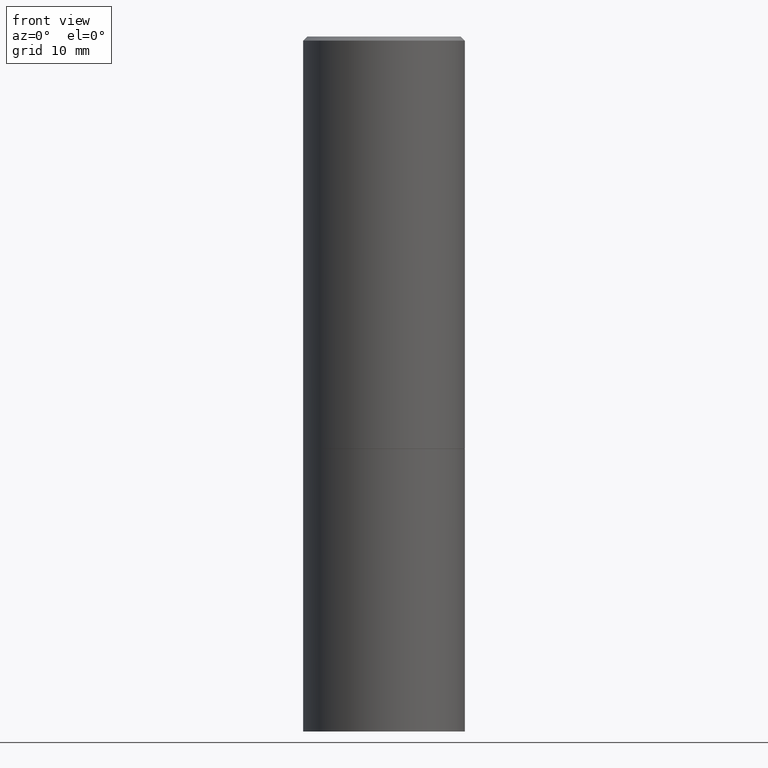
[diagram: clean part render]
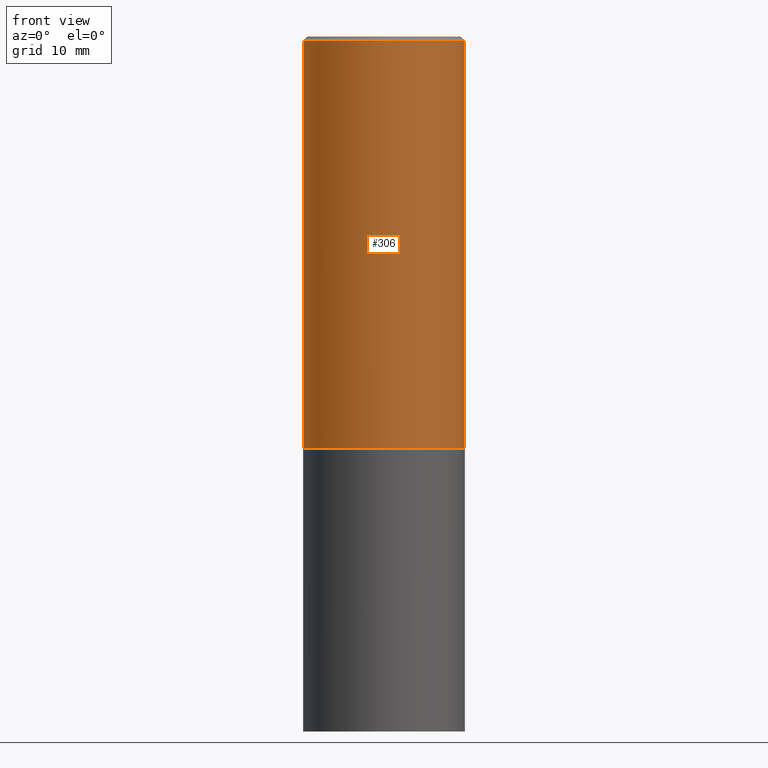
[diagram: same view with one face highlighted and labeled with its STEP entity id]
A machine part, front view. The second image highlights one B-rep face of the part: STEP entity #306.
In plain terms, the highlighted cylindrical surface (partial cylindrical patch) has radius 10 mm, axis along (-0, 0, 1).
Its self-contained STEP definition (entity closure, byte-faithful):
#17 = DIRECTION ( 'NONE',  ( 1.000000000000000000, -6.982962677686266711E-15, 4.876176775795935793E-29 ) ) ;
#23 = EDGE_CURVE ( 'NONE', #138, #92, #357, .T. ) ;
#38 = EDGE_CURVE ( 'NONE', #198, #252, #231, .T. ) ;
#53 = DIRECTION ( 'NONE',  ( -2.445468806185136877E-29, 3.491481338843145188E-15, 1.000000000000000000 ) ) ;
#54 = CARTESIAN_POINT ( 'NONE',  ( -0.3937000000000001609, -7.408604380961272890E-16, -2.006800000000000139 ) ) ;
#58 = ORIENTED_EDGE ( 'NONE', *, *, #121, .T. ) ;
#65 = CARTESIAN_POINT ( 'NONE',  ( 4.907566800252332603E-29, -7.006704750790425192E-15, -2.006800000000000139 ) ) ;
#68 = DIRECTION ( 'NONE',  ( -2.445468806185136597E-29, 3.491481338843145583E-15, 1.000000000000000000 ) ) ;
#80 = CARTESIAN_POINT ( 'NONE',  ( 0.3936999999999998279, -2.770807688499514156E-15, -0.02000000000000009062 ) ) ;
#92 = VERTEX_POINT ( 'NONE', #80 ) ;
#97 = AXIS2_PLACEMENT_3D ( 'NONE', #98, #288, #17 ) ;
#98 = CARTESIAN_POINT ( 'NONE',  ( 0.000000000000000000, 0.000000000000000000, 0.000000000000000000 ) ) ;
#112 = CARTESIAN_POINT ( 'NONE',  ( 4.890937612370295054E-31, -6.982962677686322424E-17, -0.02000000000000009062 ) ) ;
#121 = EDGE_CURVE ( 'NONE', #252, #92, #330, .T. ) ;
#122 = CARTESIAN_POINT ( 'NONE',  ( 0.3936999999999999389, -2.749192406205082822E-15, 1.919750796630859611E-29 ) ) ;
#130 = ORIENTED_EDGE ( 'NONE', *, *, #38, .T. ) ;
#133 = AXIS2_PLACEMENT_3D ( 'NONE', #112, #68, #167 ) ;
#138 = VERTEX_POINT ( 'NONE', #358 ) ;
#139 = EDGE_LOOP ( 'NONE', ( #163, #130, #58, #309 ) ) ;
#158 = CARTESIAN_POINT ( 'NONE',  ( 0.3937000000000001054, -9.755897156995509197E-15, -2.006800000000000139 ) ) ;
#163 = ORIENTED_EDGE ( 'NONE', *, *, #207, .F. ) ;
#167 = DIRECTION ( 'NONE',  ( 1.000000000000000000, -6.982962677686266711E-15, 0.000000000000000000 ) ) ;
#198 = VERTEX_POINT ( 'NONE', #54 ) ;
#205 = DIRECTION ( 'NONE',  ( -2.445468806185136877E-29, 3.491481338843145188E-15, 1.000000000000000000 ) ) ;
#207 = EDGE_CURVE ( 'NONE', #198, #138, #336, .T. ) ;
#217 = DIRECTION ( 'NONE',  ( 1.000000000000000000, -6.982962677686266711E-15, 0.000000000000000000 ) ) ;
#218 = FACE_OUTER_BOUND ( 'NONE', #139, .T. ) ;
#223 = VECTOR ( 'NONE', #205, 39.37007874015748143 ) ;
#225 = VECTOR ( 'NONE', #53, 39.37007874015748143 ) ;
#231 = CIRCLE ( 'NONE', #260, 0.3937000000000001054 ) ;
#236 = CARTESIAN_POINT ( 'NONE',  ( -0.3936999999999999389, 2.797406750687513998E-15, -1.936584745033356455E-29 ) ) ;
#252 = VERTEX_POINT ( 'NONE', #158 ) ;
#259 = DIRECTION ( 'NONE',  ( -2.445468806185136597E-29, 3.491481338843145583E-15, 1.000000000000000000 ) ) ;
#260 = AXIS2_PLACEMENT_3D ( 'NONE', #65, #259, #217 ) ;
#288 = DIRECTION ( 'NONE',  ( -2.445468806185136597E-29, 3.491481338843145583E-15, 1.000000000000000000 ) ) ;
#306 = ADVANCED_FACE ( 'NONE', ( #218 ), #344, .T. ) ;
#309 = ORIENTED_EDGE ( 'NONE', *, *, #23, .F. ) ;
#330 = LINE ( 'NONE', #122, #223 ) ;
#336 = LINE ( 'NONE', #236, #225 ) ;
#344 = CYLINDRICAL_SURFACE ( 'NONE', #97, 0.3936999999999999389 ) ;
#357 = CIRCLE ( 'NONE', #133, 0.3936999999999998279 ) ;
#358 = CARTESIAN_POINT ( 'NONE',  ( -0.3936999999999998279, 2.679362779428218735E-15, -0.02000000000000009062 ) ) ;